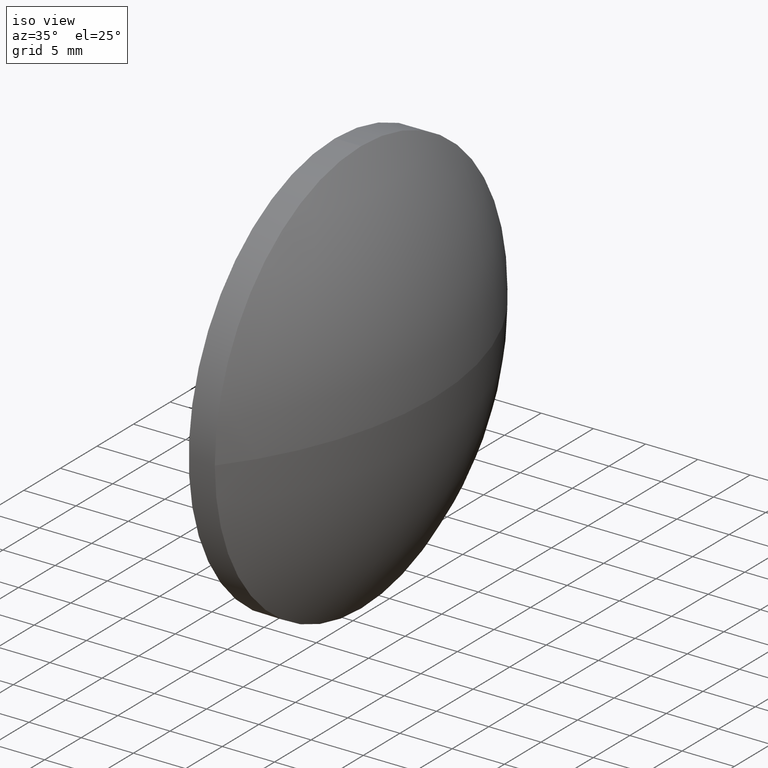
[diagram: clean part render]
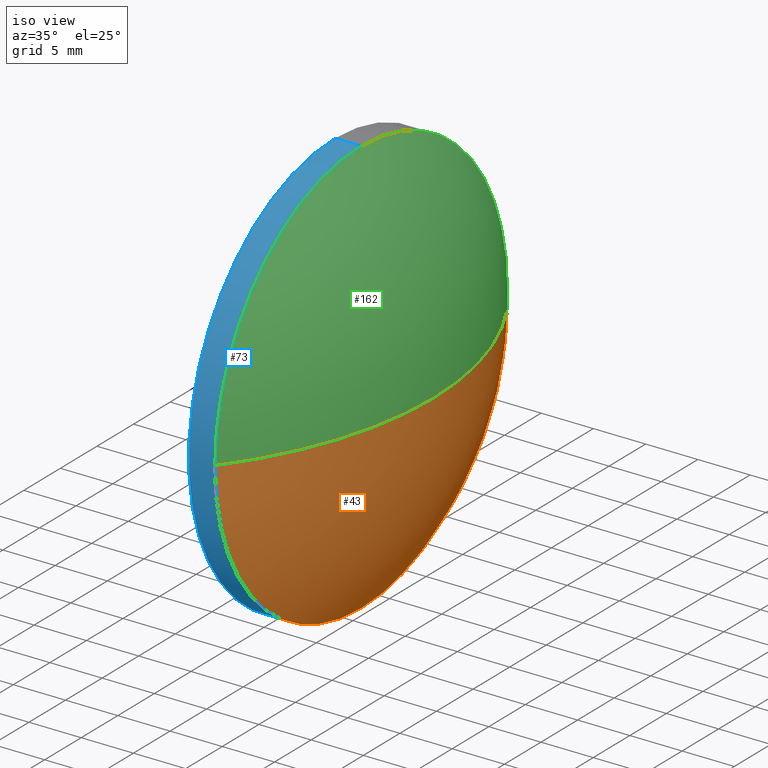
[diagram: same view with three faces highlighted in distinct colors, each labeled with its STEP entity id]
A machine part, iso view with three faces highlighted in distinct colors.
Their STEP definitions:

[orange] entity #43 — the highlighted spherical surface has radius 32.5098 mm.
#11 = ORIENTED_EDGE ( 'NONE', *, *, #23, .F. ) ;
#15 = CARTESIAN_POINT ( 'NONE',  ( 475.2872802130123100, 140.7123955263322200, 0.0000000000000000000 ) ) ;
#16 = AXIS2_PLACEMENT_3D ( 'NONE', #90, #59, #107 ) ;
#20 = ORIENTED_EDGE ( 'NONE', *, *, #61, .F. ) ;
#23 = EDGE_CURVE ( 'NONE', #100, #157, #122, .T. ) ;
#26 = AXIS2_PLACEMENT_3D ( 'NONE', #15, #91, #109 ) ;
#28 = CARTESIAN_POINT ( 'NONE',  ( 449.6575127711518600, 140.7123955263322200, 0.0000000000000000000 ) ) ;
#29 = EDGE_CURVE ( 'NONE', #143, #103, #154, .T. ) ;
#35 = DIRECTION ( 'NONE',  ( 0.0000000000000000000, 1.224646799147353200E-016, -1.000000000000000000 ) ) ;
#43 = ADVANCED_FACE ( 'NONE', ( #72 ), #158, .T. ) ;
#47 = DIRECTION ( 'NONE',  ( 0.0000000000000000000, 0.0000000000000000000, 1.000000000000000000 ) ) ;
#50 = EDGE_LOOP ( 'NONE', ( #11, #95, #69, #20 ) ) ;
#56 = AXIS2_PLACEMENT_3D ( 'NONE', #140, #35, #141 ) ;
#59 = DIRECTION ( 'NONE',  ( -0.0000000000000000000, 0.0000000000000000000, 1.000000000000000000 ) ) ;
#61 = EDGE_CURVE ( 'NONE', #157, #143, #84, .T. ) ;
#69 = ORIENTED_EDGE ( 'NONE', *, *, #29, .F. ) ;
#70 = CIRCLE ( 'NONE', #56, 32.50976744186046100 ) ;
#72 = FACE_OUTER_BOUND ( 'NONE', #50, .T. ) ;
#84 = CIRCLE ( 'NONE', #88, 19.99999999999998900 ) ;
#88 = AXIS2_PLACEMENT_3D ( 'NONE', #149, #168, #47 ) ;
#90 = CARTESIAN_POINT ( 'NONE',  ( 449.6575127711518600, 140.7123955263322200, 0.0000000000000000000 ) ) ;
#91 = DIRECTION ( 'NONE',  ( -1.000000000000000000, -0.0000000000000000000, -0.0000000000000000000 ) ) ;
#95 = ORIENTED_EDGE ( 'NONE', *, *, #134, .T. ) ;
#100 = VERTEX_POINT ( 'NONE', #182 ) ;
#103 = VERTEX_POINT ( 'NONE', #152 ) ;
#107 = DIRECTION ( 'NONE',  ( 1.000000000000000000, 0.0000000000000000000, 0.0000000000000000000 ) ) ;
#109 = DIRECTION ( 'NONE',  ( 0.0000000000000000000, 0.0000000000000000000, 1.000000000000000000 ) ) ;
#122 = CIRCLE ( 'NONE', #16, 32.50976744186046100 ) ;
#124 = DIRECTION ( 'NONE',  ( 0.0000000000000000000, 1.000000000000000000, 0.0000000000000000000 ) ) ;
#126 = CARTESIAN_POINT ( 'NONE',  ( 475.2872802130123100, 140.7123955263322200, -19.99999999999998900 ) ) ;
#130 = AXIS2_PLACEMENT_3D ( 'NONE', #28, #148, #124 ) ;
#131 = CARTESIAN_POINT ( 'NONE',  ( 475.2872802130123100, 160.7123955263322200, 0.0000000000000000000 ) ) ;
#134 = EDGE_CURVE ( 'NONE', #100, #103, #70, .T. ) ;
#140 = CARTESIAN_POINT ( 'NONE',  ( 449.6575127711518600, 140.7123955263322200, 0.0000000000000000000 ) ) ;
#141 = DIRECTION ( 'NONE',  ( 0.0000000000000000000, 1.000000000000000000, 1.224646799147353200E-016 ) ) ;
#143 = VERTEX_POINT ( 'NONE', #126 ) ;
#148 = DIRECTION ( 'NONE',  ( -0.0000000000000000000, 0.0000000000000000000, -1.000000000000000000 ) ) ;
#149 = CARTESIAN_POINT ( 'NONE',  ( 475.2872802130123100, 140.7123955263322200, 0.0000000000000000000 ) ) ;
#152 = CARTESIAN_POINT ( 'NONE',  ( 475.2872802130123100, 120.7123955263322300, -2.449293598294705700E-015 ) ) ;
#154 = CIRCLE ( 'NONE', #26, 19.99999999999998900 ) ;
#157 = VERTEX_POINT ( 'NONE', #131 ) ;
#158 = SPHERICAL_SURFACE ( 'NONE', #130, 32.50976744186046100 ) ;
#168 = DIRECTION ( 'NONE',  ( -1.000000000000000000, -0.0000000000000000000, -0.0000000000000000000 ) ) ;
#182 = CARTESIAN_POINT ( 'NONE',  ( 482.1672802130123000, 140.7123955263322200, 0.0000000000000000000 ) ) ;

[blue] entity #73 — the highlighted cylindrical surface (partial cylindrical patch) has radius 20 mm, axis along (-1, -0, -0).
#1 = VERTEX_POINT ( 'NONE', #58 ) ;
#4 = CARTESIAN_POINT ( 'NONE',  ( 475.2872802130123100, 140.7123955263322200, 0.0000000000000000000 ) ) ;
#5 = CARTESIAN_POINT ( 'NONE',  ( 472.7872802130123100, 140.7123955263322200, 19.99999999999998900 ) ) ;
#7 = CARTESIAN_POINT ( 'NONE',  ( 472.7872802130123100, 140.7123955263322200, 0.0000000000000000000 ) ) ;
#12 = DIRECTION ( 'NONE',  ( -1.000000000000000000, -0.0000000000000000000, -0.0000000000000000000 ) ) ;
#14 = ORIENTED_EDGE ( 'NONE', *, *, #117, .F. ) ;
#15 = CARTESIAN_POINT ( 'NONE',  ( 475.2872802130123100, 140.7123955263322200, 0.0000000000000000000 ) ) ;
#17 = CARTESIAN_POINT ( 'NONE',  ( 463.2807828932391800, 140.7123955263322200, 0.0000000000000000000 ) ) ;
#26 = AXIS2_PLACEMENT_3D ( 'NONE', #15, #91, #109 ) ;
#29 = EDGE_CURVE ( 'NONE', #143, #103, #154, .T. ) ;
#33 = LINE ( 'NONE', #38, #179 ) ;
#34 = DIRECTION ( 'NONE',  ( -1.000000000000000000, -0.0000000000000000000, -0.0000000000000000000 ) ) ;
#38 = CARTESIAN_POINT ( 'NONE',  ( 463.2807828932391800, 140.7123955263322200, -19.99999999999998900 ) ) ;
#42 = VERTEX_POINT ( 'NONE', #5 ) ;
#44 = DIRECTION ( 'NONE',  ( 0.0000000000000000000, 0.0000000000000000000, 1.000000000000000000 ) ) ;
#45 = EDGE_CURVE ( 'NONE', #103, #1, #65, .T. ) ;
#52 = CARTESIAN_POINT ( 'NONE',  ( 472.7872802130123100, 140.7123955263322200, -19.99999999999998900 ) ) ;
#53 = ORIENTED_EDGE ( 'NONE', *, *, #45, .T. ) ;
#58 = CARTESIAN_POINT ( 'NONE',  ( 475.2872802130123100, 140.7123955263322200, 19.99999999999998900 ) ) ;
#65 = CIRCLE ( 'NONE', #119, 19.99999999999998900 ) ;
#66 = DIRECTION ( 'NONE',  ( 0.0000000000000000000, 0.0000000000000000000, 1.000000000000000000 ) ) ;
#73 = ADVANCED_FACE ( 'NONE', ( #118 ), #147, .T. ) ;
#75 = DIRECTION ( 'NONE',  ( -1.000000000000000000, -0.0000000000000000000, -0.0000000000000000000 ) ) ;
#77 = ORIENTED_EDGE ( 'NONE', *, *, #94, .F. ) ;
#83 = DIRECTION ( 'NONE',  ( -1.000000000000000000, -0.0000000000000000000, -0.0000000000000000000 ) ) ;
#91 = DIRECTION ( 'NONE',  ( -1.000000000000000000, -0.0000000000000000000, -0.0000000000000000000 ) ) ;
#94 = EDGE_CURVE ( 'NONE', #143, #186, #33, .T. ) ;
#102 = EDGE_LOOP ( 'NONE', ( #77, #115, #53, #163, #14 ) ) ;
#103 = VERTEX_POINT ( 'NONE', #152 ) ;
#106 = AXIS2_PLACEMENT_3D ( 'NONE', #17, #75, #137 ) ;
#108 = DIRECTION ( 'NONE',  ( -1.000000000000000000, -0.0000000000000000000, -0.0000000000000000000 ) ) ;
#109 = DIRECTION ( 'NONE',  ( 0.0000000000000000000, 0.0000000000000000000, 1.000000000000000000 ) ) ;
#114 = CARTESIAN_POINT ( 'NONE',  ( 463.2807828932391800, 140.7123955263322200, 19.99999999999998900 ) ) ;
#115 = ORIENTED_EDGE ( 'NONE', *, *, #29, .T. ) ;
#117 = EDGE_CURVE ( 'NONE', #186, #42, #169, .T. ) ;
#118 = FACE_OUTER_BOUND ( 'NONE', #102, .T. ) ;
#119 = AXIS2_PLACEMENT_3D ( 'NONE', #4, #108, #44 ) ;
#126 = CARTESIAN_POINT ( 'NONE',  ( 475.2872802130123100, 140.7123955263322200, -19.99999999999998900 ) ) ;
#133 = VECTOR ( 'NONE', #34, 1000.000000000000000 ) ;
#137 = DIRECTION ( 'NONE',  ( 0.0000000000000000000, 0.0000000000000000000, 1.000000000000000000 ) ) ;
#143 = VERTEX_POINT ( 'NONE', #126 ) ;
#147 = CYLINDRICAL_SURFACE ( 'NONE', #106, 19.99999999999998900 ) ;
#152 = CARTESIAN_POINT ( 'NONE',  ( 475.2872802130123100, 120.7123955263322300, -2.449293598294705700E-015 ) ) ;
#154 = CIRCLE ( 'NONE', #26, 19.99999999999998900 ) ;
#159 = LINE ( 'NONE', #114, #133 ) ;
#161 = AXIS2_PLACEMENT_3D ( 'NONE', #7, #12, #66 ) ;
#163 = ORIENTED_EDGE ( 'NONE', *, *, #167, .T. ) ;
#167 = EDGE_CURVE ( 'NONE', #1, #42, #159, .T. ) ;
#169 = CIRCLE ( 'NONE', #161, 19.99999999999998900 ) ;
#179 = VECTOR ( 'NONE', #83, 1000.000000000000000 ) ;
#186 = VERTEX_POINT ( 'NONE', #52 ) ;

[green] entity #162 — the highlighted spherical surface has radius 32.5098 mm.
#1 = VERTEX_POINT ( 'NONE', #58 ) ;
#2 = FACE_OUTER_BOUND ( 'NONE', #127, .T. ) ;
#4 = CARTESIAN_POINT ( 'NONE',  ( 475.2872802130123100, 140.7123955263322200, 0.0000000000000000000 ) ) ;
#6 = ORIENTED_EDGE ( 'NONE', *, *, #45, .F. ) ;
#13 = EDGE_CURVE ( 'NONE', #1, #157, #41, .T. ) ;
#16 = AXIS2_PLACEMENT_3D ( 'NONE', #90, #59, #107 ) ;
#23 = EDGE_CURVE ( 'NONE', #100, #157, #122, .T. ) ;
#30 = DIRECTION ( 'NONE',  ( -1.000000000000000000, -0.0000000000000000000, -0.0000000000000000000 ) ) ;
#35 = DIRECTION ( 'NONE',  ( 0.0000000000000000000, 1.224646799147353200E-016, -1.000000000000000000 ) ) ;
#41 = CIRCLE ( 'NONE', #105, 19.99999999999998900 ) ;
#44 = DIRECTION ( 'NONE',  ( 0.0000000000000000000, 0.0000000000000000000, 1.000000000000000000 ) ) ;
#45 = EDGE_CURVE ( 'NONE', #103, #1, #65, .T. ) ;
#51 = DIRECTION ( 'NONE',  ( 0.0000000000000000000, 1.000000000000000000, 0.0000000000000000000 ) ) ;
#56 = AXIS2_PLACEMENT_3D ( 'NONE', #140, #35, #141 ) ;
#58 = CARTESIAN_POINT ( 'NONE',  ( 475.2872802130123100, 140.7123955263322200, 19.99999999999998900 ) ) ;
#59 = DIRECTION ( 'NONE',  ( -0.0000000000000000000, 0.0000000000000000000, 1.000000000000000000 ) ) ;
#65 = CIRCLE ( 'NONE', #119, 19.99999999999998900 ) ;
#70 = CIRCLE ( 'NONE', #56, 32.50976744186046100 ) ;
#87 = AXIS2_PLACEMENT_3D ( 'NONE', #142, #180, #51 ) ;
#90 = CARTESIAN_POINT ( 'NONE',  ( 449.6575127711518600, 140.7123955263322200, 0.0000000000000000000 ) ) ;
#100 = VERTEX_POINT ( 'NONE', #182 ) ;
#103 = VERTEX_POINT ( 'NONE', #152 ) ;
#105 = AXIS2_PLACEMENT_3D ( 'NONE', #166, #30, #110 ) ;
#107 = DIRECTION ( 'NONE',  ( 1.000000000000000000, 0.0000000000000000000, 0.0000000000000000000 ) ) ;
#108 = DIRECTION ( 'NONE',  ( -1.000000000000000000, -0.0000000000000000000, -0.0000000000000000000 ) ) ;
#110 = DIRECTION ( 'NONE',  ( 0.0000000000000000000, 0.0000000000000000000, 1.000000000000000000 ) ) ;
#119 = AXIS2_PLACEMENT_3D ( 'NONE', #4, #108, #44 ) ;
#120 = ORIENTED_EDGE ( 'NONE', *, *, #134, .F. ) ;
#122 = CIRCLE ( 'NONE', #16, 32.50976744186046100 ) ;
#127 = EDGE_LOOP ( 'NONE', ( #120, #175, #151, #6 ) ) ;
#131 = CARTESIAN_POINT ( 'NONE',  ( 475.2872802130123100, 160.7123955263322200, 0.0000000000000000000 ) ) ;
#134 = EDGE_CURVE ( 'NONE', #100, #103, #70, .T. ) ;
#140 = CARTESIAN_POINT ( 'NONE',  ( 449.6575127711518600, 140.7123955263322200, 0.0000000000000000000 ) ) ;
#141 = DIRECTION ( 'NONE',  ( 0.0000000000000000000, 1.000000000000000000, 1.224646799147353200E-016 ) ) ;
#142 = CARTESIAN_POINT ( 'NONE',  ( 449.6575127711518600, 140.7123955263322200, 0.0000000000000000000 ) ) ;
#151 = ORIENTED_EDGE ( 'NONE', *, *, #13, .F. ) ;
#152 = CARTESIAN_POINT ( 'NONE',  ( 475.2872802130123100, 120.7123955263322300, -2.449293598294705700E-015 ) ) ;
#157 = VERTEX_POINT ( 'NONE', #131 ) ;
#162 = ADVANCED_FACE ( 'NONE', ( #2 ), #177, .T. ) ;
#166 = CARTESIAN_POINT ( 'NONE',  ( 475.2872802130123100, 140.7123955263322200, 0.0000000000000000000 ) ) ;
#175 = ORIENTED_EDGE ( 'NONE', *, *, #23, .T. ) ;
#177 = SPHERICAL_SURFACE ( 'NONE', #87, 32.50976744186046100 ) ;
#180 = DIRECTION ( 'NONE',  ( -0.0000000000000000000, 0.0000000000000000000, -1.000000000000000000 ) ) ;
#182 = CARTESIAN_POINT ( 'NONE',  ( 482.1672802130123000, 140.7123955263322200, 0.0000000000000000000 ) ) ;